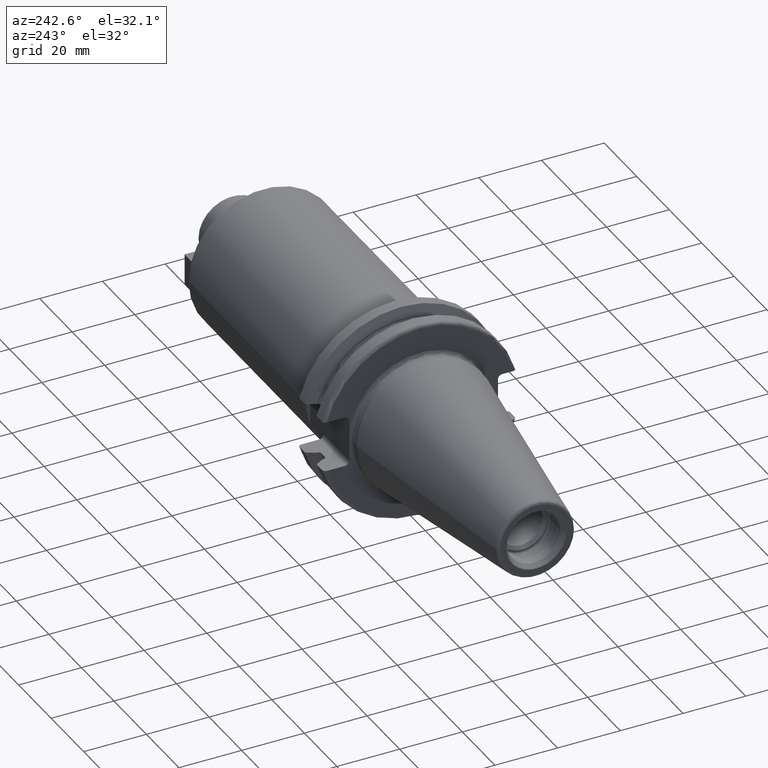
[diagram: clean part render]
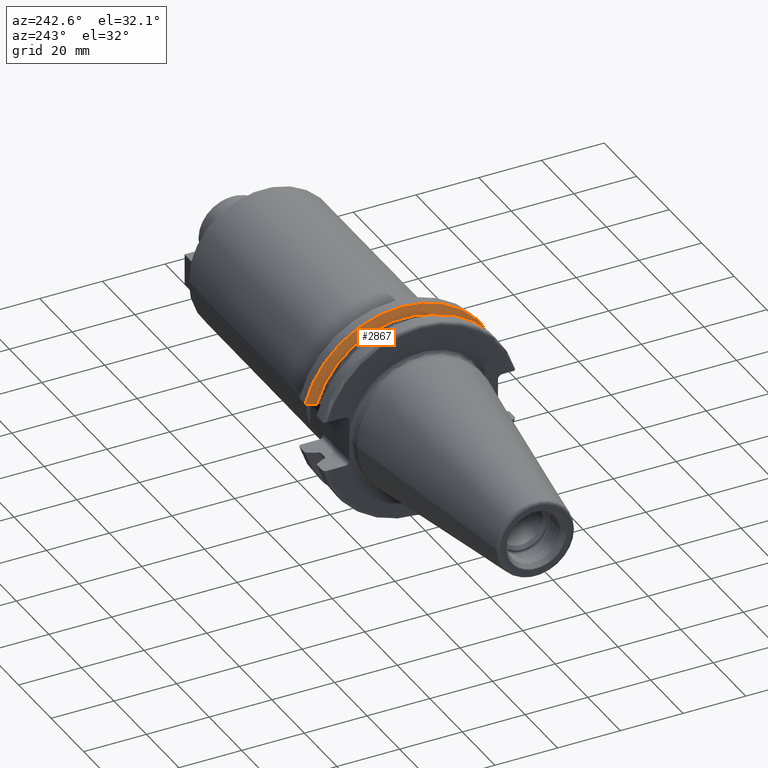
[diagram: same view with one face highlighted and labeled with its STEP entity id]
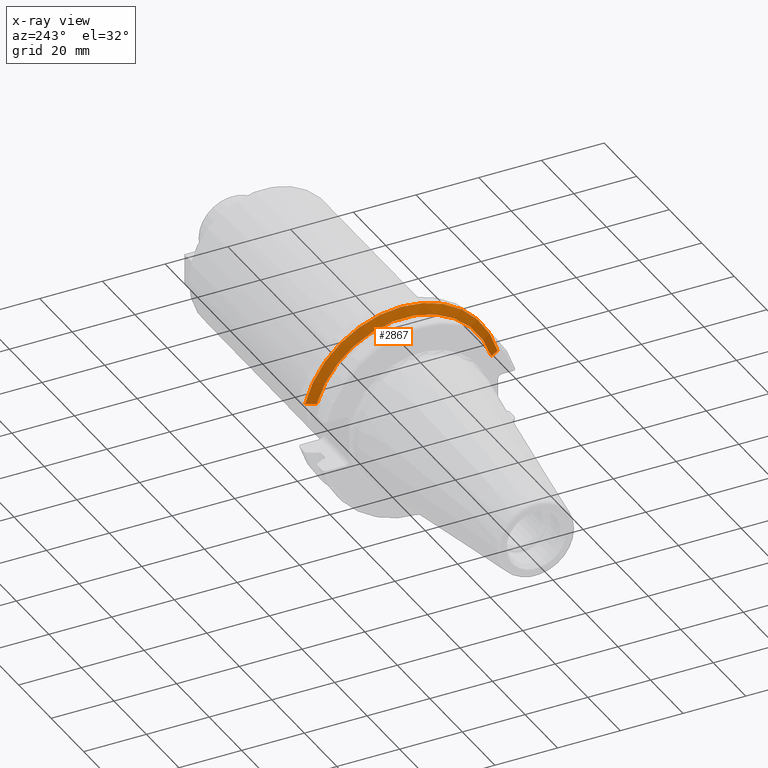
[diagram: x-ray of the same camera — body ghosted, the highlighted face saturated]
A machine part, auxiliary view. The second image highlights one B-rep face of the part: STEP entity #2867.
The next image is the same camera in x-ray: the body ghosted, the highlighted face saturated — about 0% of this face is hidden behind the body in this view.
In plain terms, the highlighted conical surface has half-angle 60 deg.
Its self-contained STEP definition (entity closure, byte-faithful):
#721=CARTESIAN_POINT('',(1.470405352042E1,0.E0,0.E0));
#722=DIRECTION('',(1.E0,0.E0,0.E0));
#723=DIRECTION('',(0.E0,9.669363825036E-1,2.550177095632E-1));
#724=AXIS2_PLACEMENT_3D('',#721,#722,#723);
#885=CARTESIAN_POINT('',(1.470405352042E1,3.071231684927E1,8.1E0));
#886=CARTESIAN_POINT('',(1.451824513517E1,3.037948258059E1,8.1E0));
#887=CARTESIAN_POINT('',(1.415074718503E1,2.972048825911E1,8.1E0));
#888=CARTESIAN_POINT('',(1.361195207986E1,2.875212438619E1,8.1E0));
#889=CARTESIAN_POINT('',(1.326094199325E1,2.811971443922E1,8.1E0));
#890=CARTESIAN_POINT('',(1.30875E1,2.780681820245E1,8.1E0));
#892=CARTESIAN_POINT('',(1.30875E1,-2.780681820245E1,8.1E0));
#893=CARTESIAN_POINT('',(1.326086175289E1,-2.811956968242E1,8.1E0));
#894=CARTESIAN_POINT('',(1.361176448515E1,-2.875178670793E1,8.1E0));
#895=CARTESIAN_POINT('',(1.415055493375E1,-2.972014324708E1,8.1E0));
#896=CARTESIAN_POINT('',(1.451816260441E1,-3.037933474515E1,8.1E0));
#897=CARTESIAN_POINT('',(1.470405352042E1,-3.071231684927E1,8.1E0));
#899=CARTESIAN_POINT('',(1.30875E1,0.E0,0.E0));
#900=DIRECTION('',(1.E0,0.E0,0.E0));
#901=DIRECTION('',(0.E0,9.600957415706E-1,2.796715341576E-1));
#902=AXIS2_PLACEMENT_3D('',#899,#900,#901);
#1564=CARTESIAN_POINT('',(1.30875E1,2.780681820245E1,8.1E0));
#1565=VERTEX_POINT('',#1564);
#1574=CARTESIAN_POINT('',(1.30875E1,-2.780681820245E1,8.1E0));
#1575=VERTEX_POINT('',#1574);
#1584=VERTEX_POINT('',#885);
#1585=VERTEX_POINT('',#897);
#2856=CARTESIAN_POINT('',(1.389577676021E1,0.E0,0.E0));
#2857=DIRECTION('',(1.E0,0.E0,0.E0));
#2858=DIRECTION('',(0.E0,-1.E0,0.E0));
#2859=AXIS2_PLACEMENT_3D('',#2856,#2857,#2858);
#2860=CONICAL_SURFACE('',#2859,3.036252358474E1,6.E1);
#2861=ORIENTED_EDGE('',*,*,#2047,.F.);
#2862=ORIENTED_EDGE('',*,*,#2713,.T.);
#2863=ORIENTED_EDGE('',*,*,#2109,.F.);
#2864=ORIENTED_EDGE('',*,*,#2819,.F.);
#2865=EDGE_LOOP('',(#2861,#2862,#2863,#2864));
#2866=FACE_OUTER_BOUND('',#2865,.F.);
#2867=ADVANCED_FACE('',(#2866),#2860,.T.);
#725=CIRCLE('',#724,3.17625E1);
#891=B_SPLINE_CURVE_WITH_KNOTS('',3,(#885,#886,#887,#888,#889,#890),
.UNSPECIFIED.,.F.,.F.,(4,1,1,4),(0.E0,3.333333333333E-1,6.666666666667E-1,1.E0),
.UNSPECIFIED.);
#898=B_SPLINE_CURVE_WITH_KNOTS('',3,(#892,#893,#894,#895,#896,#897),
.UNSPECIFIED.,.F.,.F.,(4,1,1,4),(0.E0,3.333333333333E-1,6.666666666667E-1,1.E0),
.UNSPECIFIED.);
#903=CIRCLE('',#902,2.896254716948E1);
#2047=EDGE_CURVE('',#1584,#1565,#891,.T.);
#2109=EDGE_CURVE('',#1575,#1585,#898,.T.);
#2713=EDGE_CURVE('',#1584,#1585,#725,.T.);
#2819=EDGE_CURVE('',#1565,#1575,#903,.T.);